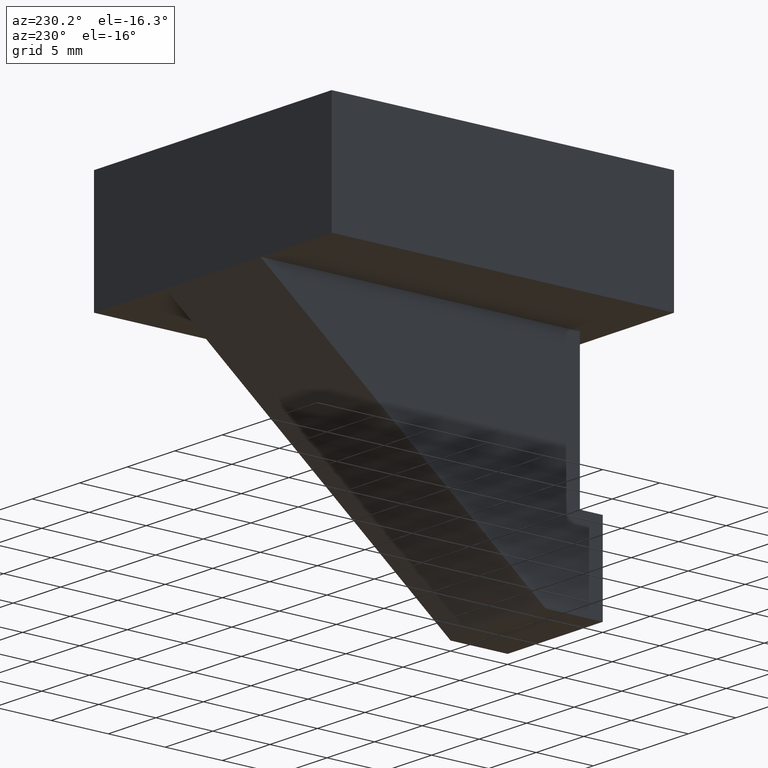
[diagram: clean part render]
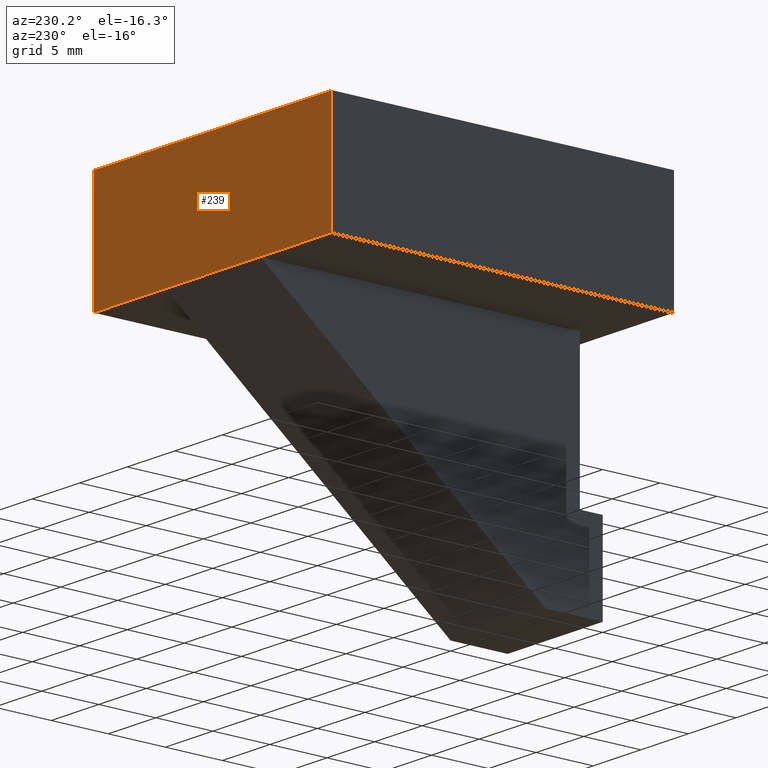
[diagram: same view with one face highlighted and labeled with its STEP entity id]
A machine part, auxiliary view. The second image highlights one B-rep face of the part: STEP entity #239.
In plain terms, the highlighted planar face has unit normal (0, 1, 0).
Its self-contained STEP definition (entity closure, byte-faithful):
#25=FACE_OUTER_BOUND('',#38,.T.);
#38=EDGE_LOOP('',(#198,#199,#200,#201,#202,#203));
#52=LINE('',#363,#83);
#62=LINE('',#383,#93);
#67=LINE('',#393,#98);
#68=LINE('',#396,#99);
#69=LINE('',#397,#100);
#70=LINE('',#398,#101);
#83=VECTOR('',#299,10.);
#93=VECTOR('',#317,10.);
#98=VECTOR('',#326,10.);
#99=VECTOR('',#329,10.);
#100=VECTOR('',#330,10.);
#101=VECTOR('',#331,10.);
#107=VERTEX_POINT('',#346);
#112=VERTEX_POINT('',#362);
#115=VERTEX_POINT('',#376);
#118=VERTEX_POINT('',#381);
#121=VERTEX_POINT('',#391);
#122=VERTEX_POINT('',#395);
#134=EDGE_CURVE('',#107,#112,#52,.T.);
#144=EDGE_CURVE('',#118,#115,#62,.T.);
#149=EDGE_CURVE('',#118,#121,#67,.T.);
#150=EDGE_CURVE('',#122,#121,#68,.T.);
#151=EDGE_CURVE('',#112,#122,#69,.T.);
#152=EDGE_CURVE('',#115,#107,#70,.T.);
#198=ORIENTED_EDGE('',*,*,#149,.T.);
#199=ORIENTED_EDGE('',*,*,#150,.F.);
#200=ORIENTED_EDGE('',*,*,#151,.F.);
#201=ORIENTED_EDGE('',*,*,#134,.F.);
#202=ORIENTED_EDGE('',*,*,#152,.F.);
#203=ORIENTED_EDGE('',*,*,#144,.F.);
#226=PLANE('',#275);
#239=ADVANCED_FACE('',(#25),#226,.T.);
#275=AXIS2_PLACEMENT_3D('',#394,#327,#328);
#299=DIRECTION('',(1.,0.,0.));
#317=DIRECTION('',(0.,0.,-1.));
#326=DIRECTION('',(1.,0.,0.));
#327=DIRECTION('center_axis',(0.,1.,0.));
#328=DIRECTION('ref_axis',(0.,0.,1.));
#329=DIRECTION('',(0.,0.,1.));
#330=DIRECTION('',(1.,0.,0.));
#331=DIRECTION('',(1.,0.,0.));
#346=CARTESIAN_POINT('',(-5.,30.,0.));
#362=CARTESIAN_POINT('',(5.,30.,0.));
#363=CARTESIAN_POINT('',(0.,30.,0.));
#376=CARTESIAN_POINT('',(-12.5,30.,0.));
#381=CARTESIAN_POINT('',(-12.5,30.,10.));
#383=CARTESIAN_POINT('',(-12.5,30.,0.));
#391=CARTESIAN_POINT('',(12.5,30.,10.));
#393=CARTESIAN_POINT('',(0.,30.,10.));
#394=CARTESIAN_POINT('Origin',(0.,30.,0.));
#395=CARTESIAN_POINT('',(12.5,30.,0.));
#396=CARTESIAN_POINT('',(12.5,30.,0.));
#397=CARTESIAN_POINT('',(0.,30.,0.));
#398=CARTESIAN_POINT('',(0.,30.,0.));